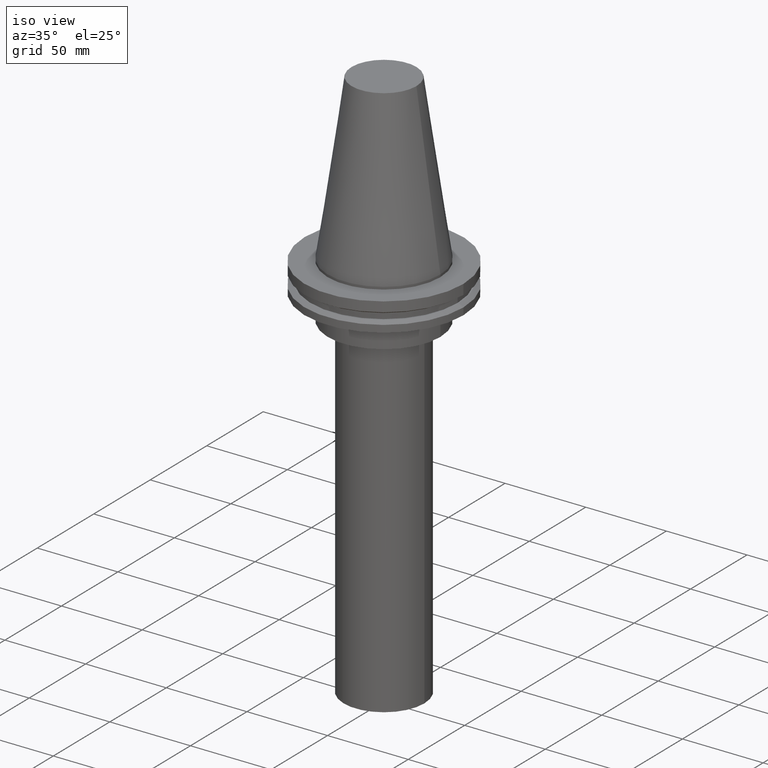
[diagram: clean part render]
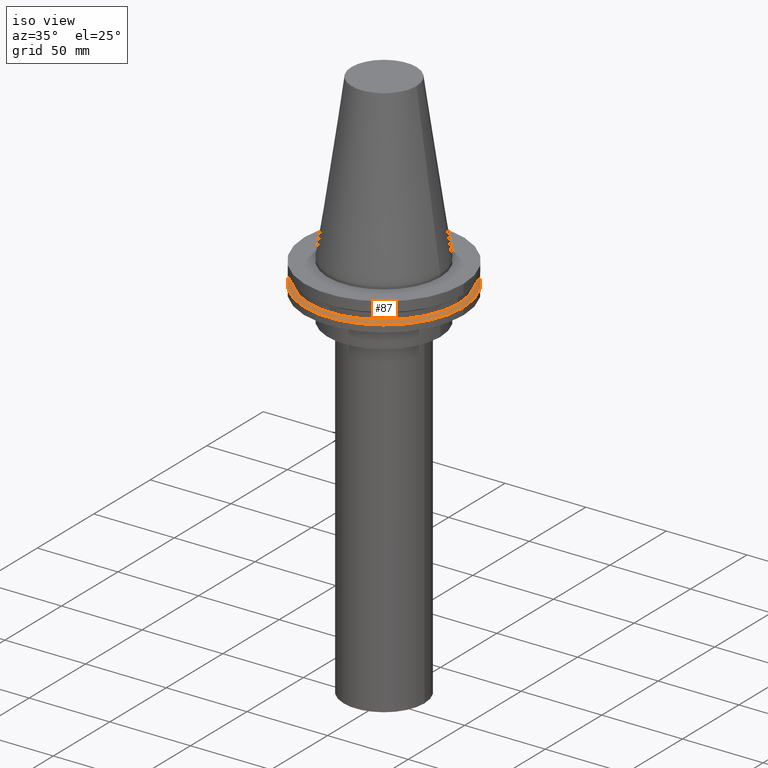
[diagram: same view with one face highlighted and labeled with its STEP entity id]
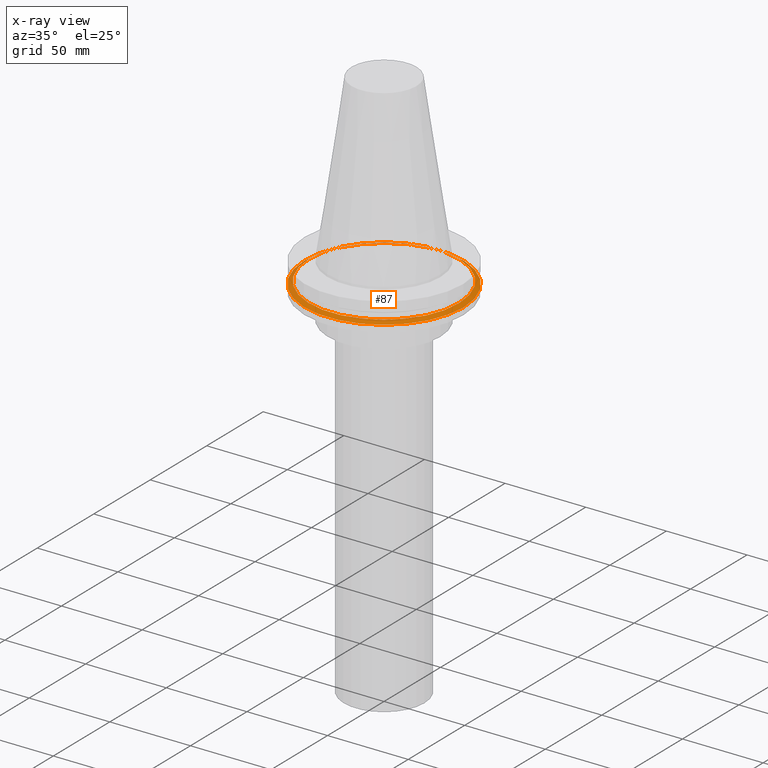
[diagram: x-ray of the same camera — body ghosted, the highlighted face saturated]
A machine part, iso view. The second image highlights one B-rep face of the part: STEP entity #87.
The next image is the same camera in x-ray: the body ghosted, the highlighted face saturated — about 3% of this face is hidden behind the body in this view.
In plain terms, the highlighted conical surface has half-angle 60 deg.
Its self-contained STEP definition (entity closure, byte-faithful):
#1 = FACE_OUTER_BOUND ( 'NONE', #138, .T. ) ;
#7 = CIRCLE ( 'NONE', #78, 46.43919780457007818 ) ;
#25 = FACE_BOUND ( 'NONE', #365, .T. ) ;
#78 = AXIS2_PLACEMENT_3D ( 'NONE', #232, #143, #267 ) ;
#80 = CARTESIAN_POINT ( 'NONE',  ( 49.21499999999998920, 0.000000000000000000, -14.65761014474876944 ) ) ;
#87 = ADVANCED_FACE ( 'NONE', ( #25, #1 ), #124, .T. ) ;
#111 = DIRECTION ( 'NONE',  ( 1.000000000000000000, 0.000000000000000000, 0.000000000000000000 ) ) ;
#124 = CONICAL_SURFACE ( 'NONE', #350, 49.21499999999998920, 1.047197551196554333 ) ;
#137 = CARTESIAN_POINT ( 'NONE',  ( 0.000000000000000000, 0.000000000000000000, -14.65761014474876944 ) ) ;
#138 = EDGE_LOOP ( 'NONE', ( #390 ) ) ;
#143 = DIRECTION ( 'NONE',  ( -0.000000000000000000, -0.000000000000000000, 1.000000000000000000 ) ) ;
#232 = CARTESIAN_POINT ( 'NONE',  ( 0.000000000000000000, 0.000000000000000000, -13.05499999999999794 ) ) ;
#236 = ORIENTED_EDGE ( 'NONE', *, *, #375, .F. ) ;
#245 = VERTEX_POINT ( 'NONE', #373 ) ;
#250 = AXIS2_PLACEMENT_3D ( 'NONE', #137, #258, #111 ) ;
#258 = DIRECTION ( 'NONE',  ( -0.000000000000000000, -0.000000000000000000, 1.000000000000000000 ) ) ;
#267 = DIRECTION ( 'NONE',  ( 1.000000000000000000, 0.000000000000000000, 0.000000000000000000 ) ) ;
#277 = VERTEX_POINT ( 'NONE', #80 ) ;
#343 = CARTESIAN_POINT ( 'NONE',  ( 0.000000000000000000, 0.000000000000000000, -14.65761014474876944 ) ) ;
#345 = CIRCLE ( 'NONE', #250, 49.21499999999998920 ) ;
#350 = AXIS2_PLACEMENT_3D ( 'NONE', #343, #374, #376 ) ;
#356 = EDGE_CURVE ( 'NONE', #277, #277, #345, .T. ) ;
#365 = EDGE_LOOP ( 'NONE', ( #236 ) ) ;
#373 = CARTESIAN_POINT ( 'NONE',  ( 46.43919780457007818, 0.000000000000000000, -13.05499999999999794 ) ) ;
#374 = DIRECTION ( 'NONE',  ( 0.000000000000000000, 0.000000000000000000, -1.000000000000000000 ) ) ;
#375 = EDGE_CURVE ( 'NONE', #245, #245, #7, .T. ) ;
#376 = DIRECTION ( 'NONE',  ( -1.000000000000000000, 0.000000000000000000, 0.000000000000000000 ) ) ;
#390 = ORIENTED_EDGE ( 'NONE', *, *, #356, .T. ) ;